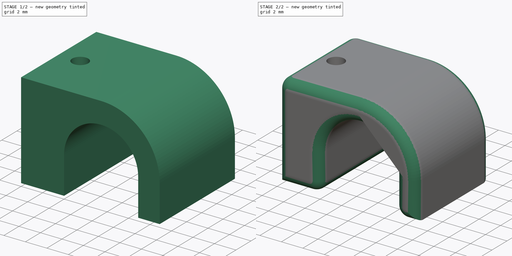
[diagram: build sequence overview — one tinted view per stage of 2, left to right]
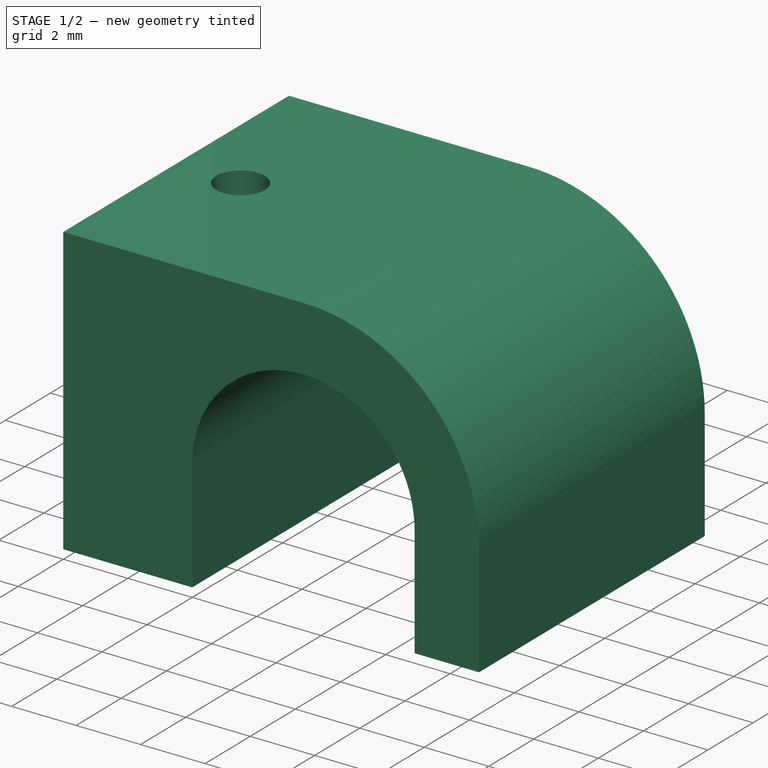
[diagram: stage 1 of 2 — iso view after this stage's code; geometry added in this stage tinted green]
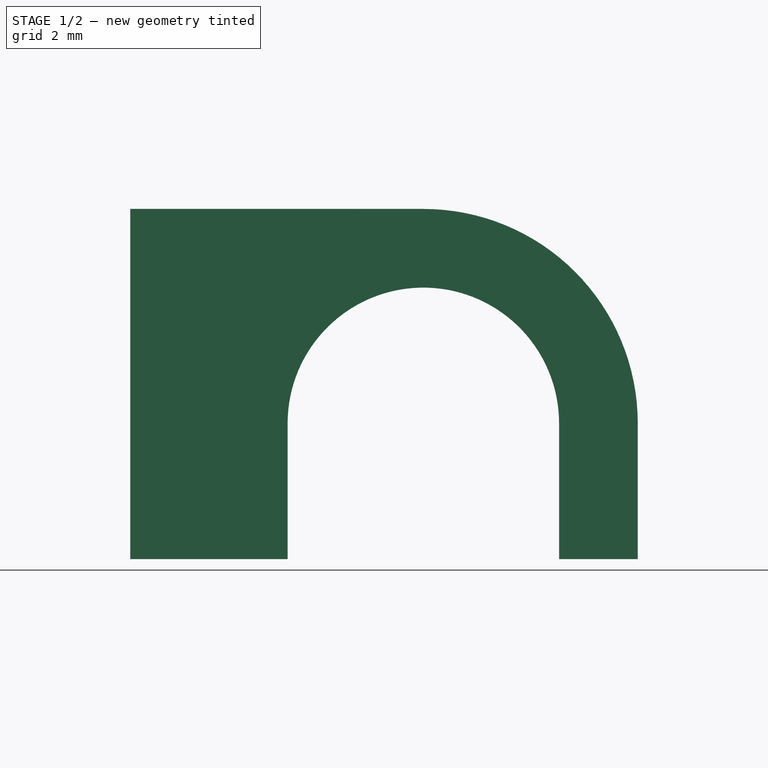
[diagram: stage 1 of 2 — front view after this stage's code; geometry added in this stage tinted green]
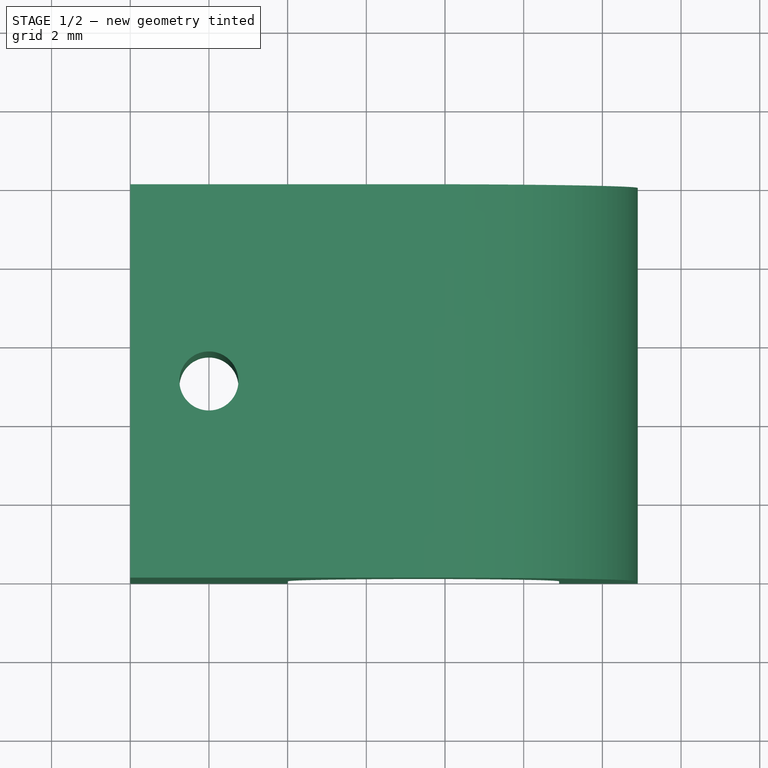
[diagram: stage 1 of 2 — top view after this stage's code; geometry added in this stage tinted green]
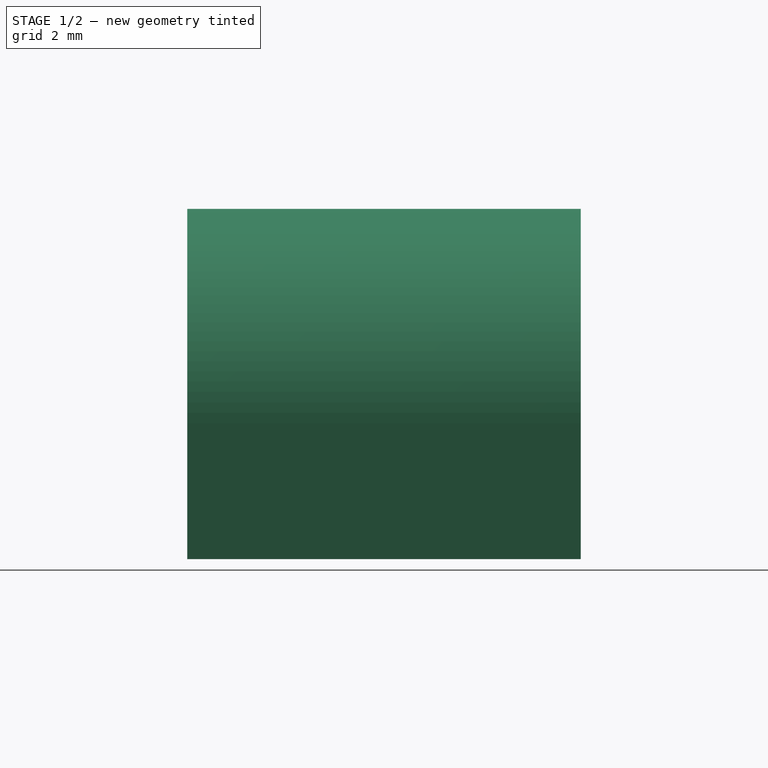
[diagram: stage 1 of 2 — right view after this stage's code; geometry added in this stage tinted green]
FCSTD DOCUMENT  (FreeCAD 1.1R20251125 (Git shallow))
Label: wall_cable_blocker
License: All rights reserved
objects: Sketcher::SketchObject×2, PartDesign::Fillet×2, App::Point×1, App::VarSet×1, PartDesign::Pad×1, PartDesign::Pocket×1, PartDesign::Body×1, App::DocumentObjectGroup×1
note: 17 computed .brp shape members not serialized (recipe doc carries the construction recipe); baked Part::Feature solids carry a one-line shape summary decoded from their .brp

FEATURE [App::Point] Origin001
  Role = Origin
FEATURE [App::VarSet] VarSet  label="CABLE_PARAMETERS"
  CABLE_RADIUS = 3.45
  PADDING = 10
  THICKNESS = 2
FEATURE [Sketcher::SketchObject] Sketch001
  ArcFitTolerance = 1e-06
  AttachmentSupport = -> [Origin]
  ExternalTypes = [0]
  FullyConstrained = true
  MakeInternals = false
  MapMode = 5
  Placement = pos=(0,0,0) rot=(1,0,0;1.5708rad)
  expr: Constraints[12] = <<CABLE_PARAMETERS>>.CABLE_RADIUS + 2 * <<CABLE_PARAMETERS>>.THICKNESS
  expr: Constraints[21] = <<CABLE_PARAMETERS>>.THICKNESS
  expr: Constraints[22] = <<CABLE_PARAMETERS>>.CABLE_RADIUS
  expr: Constraints[26] = <<CABLE_PARAMETERS>>.THICKNESS * 2
  expr: Constraints[4] = <<CABLE_PARAMETERS>>.CABLE_RADIUS
  expr: Constraints[5] = <<CABLE_PARAMETERS>>.CABLE_RADIUS * 2 + 2 * <<CABLE_PARAMETERS>>.THICKNESS
  expr: Constraints[9] = <<CABLE_PARAMETERS>>.CABLE_RADIUS * 2 + <<CABLE_PARAMETERS>>.THICKNESS
  sketch-geometry (10):
    g0: LineSegment StartX=12.9 StartY=-7.4e-15 StartZ=0 EndX=12.9 EndY=3.45 EndZ=0
    g1: LineSegment [constr] StartX=12.9 StartY=3.45 StartZ=0 EndX=2 EndY=3.45 EndZ=0
    g2: ArcOfCircle CenterX=7.45 CenterY=3.45 CenterZ=0 NormalX=0 NormalY=0 NormalZ=1 AngleXU=0 Radius=5.45 StartAngle=4e-16 EndAngle=1.5708
    g3: LineSegment StartX=0 StartY=0 StartZ=0 EndX=0 EndY=8.9 EndZ=0
    g4: LineSegment StartX=0 StartY=8.9 StartZ=0 EndX=7.45 EndY=8.9 EndZ=0
    g5: ArcOfCircle CenterX=7.45 CenterY=3.45 CenterZ=0 NormalX=0 NormalY=0 NormalZ=1 AngleXU=0 Radius=3.45 StartAngle=0 EndAngle=3.14159
    g6: LineSegment StartX=10.9 StartY=3.45 StartZ=0 EndX=10.9 EndY=-7.5e-15 EndZ=0
    g7: LineSegment StartX=4 StartY=3.45 StartZ=0 EndX=4 EndY=0 EndZ=0
    g8: LineSegment StartX=10.9 StartY=-7.4e-15 StartZ=0 EndX=12.9 EndY=-7.4e-15 EndZ=0
    g9: LineSegment StartX=0 StartY=0 StartZ=0 EndX=4 EndY=0 EndZ=0
  constraints (28):
    c: Coincident(g8,g0)
    c: Coincident(g0,g1)
    c: Horizontal(g1)
    c: Vertical(g0)
    c: DistanceY(g0,g0) = 3.45
    c: DistanceX(g1,g1) = 10.9
    c: Coincident(g2,g0)
    c: PointOnObject(g2,g1)
    c: Vertical(g3)
    c: Distance(g3,g3) = 8.9
    c: Coincident(g4,g3)
    c: Tangent(g4,g2) = 1.5708
    c: DistanceX(g4,g4) = 7.45
    c: Coincident(g5,g2)
    c: PointOnObject(g5,g1)
    c: PointOnObject(g5,g1)
    c: Tangent(g5,g6) = 1.5708
    c: Coincident(g7,g5)
    c: Vertical(g7)
    c: Horizontal(g8)
    c: Coincident(g8,g6)
    c: Distance(g8,g8) = 2
    c: Radius(g5) = 3.45
    c: Coincident(g9,g3)
    c: Coincident(g9,g7)
    c: Horizontal(g9)
    c: Distance(g9,g9) = 4
    c: Coincident(g3,g-1)
FEATURE [PartDesign::Pad] Pad
  Direction = (0,-1,2e-16)
  Length = 10
  Length2 = 10
  Profile = -> Sketch001
  ReferenceAxis = -> Sketch001 [N_Axis]
  Refine = true
  SideType = 0
  Suppressed = false
  Type = 0
  Type2 = 0
  expr: Length = <<CABLE_PARAMETERS>>.PADDING
FEATURE [Sketcher::SketchObject] Sketch
  ArcFitTolerance = 1e-06
  AttachmentSupport = -> [Pad]
  ExternalGeometry = -> [Pad]
  ExternalTypes = [0]
  FullyConstrained = true
  MakeInternals = false
  MapMode = 5
  Placement = pos=(-2.1e-15,2e-15,8.9) rot=(0,0,1;0rad)
  expr: Constraints[0] = 1.5
  expr: Constraints[1] = <<CABLE_PARAMETERS>>.PADDING / 2
  expr: Constraints[2] = <<CABLE_PARAMETERS>>.THICKNESS
  sketch-geometry (1):
    g0: Circle CenterX=2 CenterY=-5 CenterZ=0 NormalX=0 NormalY=0 NormalZ=1 AngleXU=0 Radius=0.75
  constraints (3):
    c: Diameter(g0) = 1.5
    c: DistanceY(g0,g-1) = 5
    c: DistanceX(g-1,g0) = 2
FEATURE [PartDesign::Pocket] Pocket
  BaseFeature = -> Pad
  Direction = (0,0,-1)
  Length = 5
  Length2 = 5
  Profile = -> Sketch
  ReferenceAxis = -> Sketch [N_Axis]
  Refine = true
  SideType = 0
  Suppressed = false
  Type = 2
  Type2 = 0
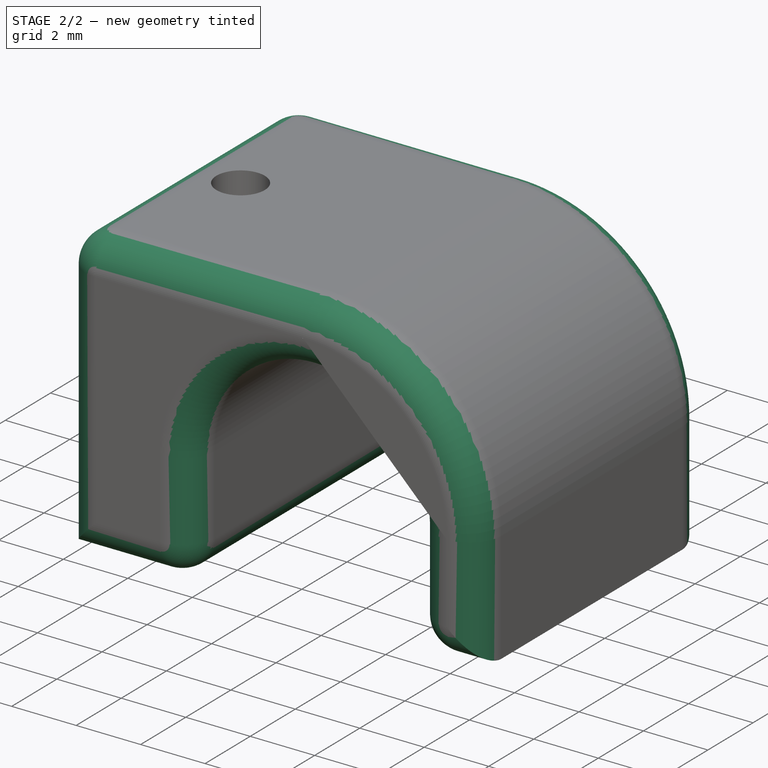
[diagram: stage 2 of 2 — iso view after this stage's code; geometry added in this stage tinted green]
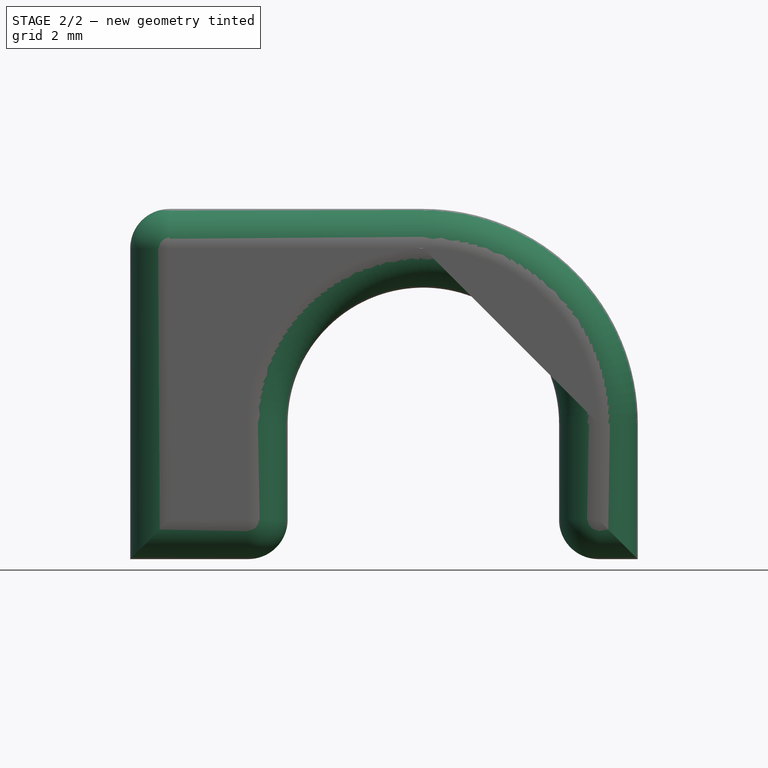
[diagram: stage 2 of 2 — front view after this stage's code; geometry added in this stage tinted green]
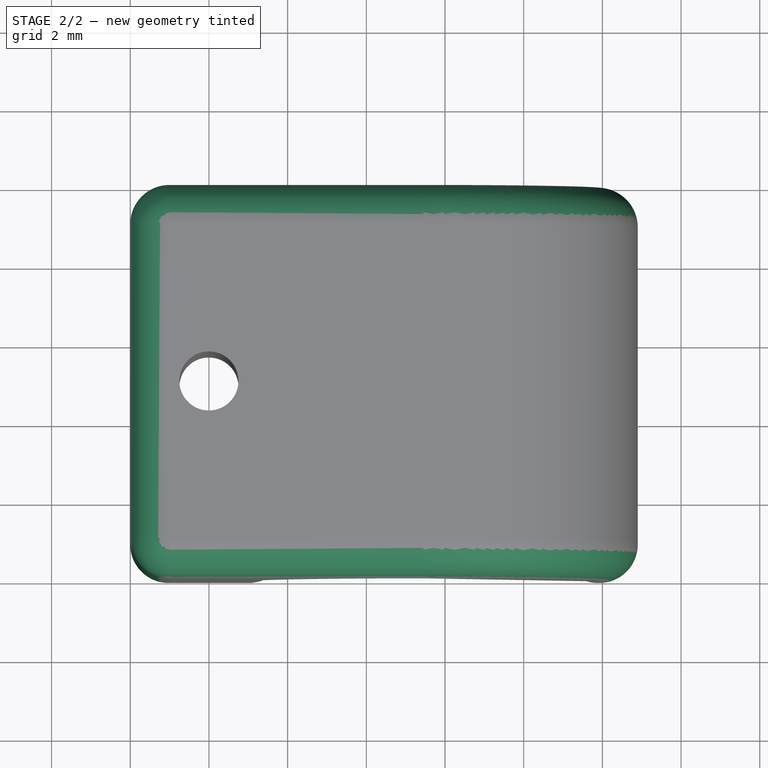
[diagram: stage 2 of 2 — top view after this stage's code; geometry added in this stage tinted green]
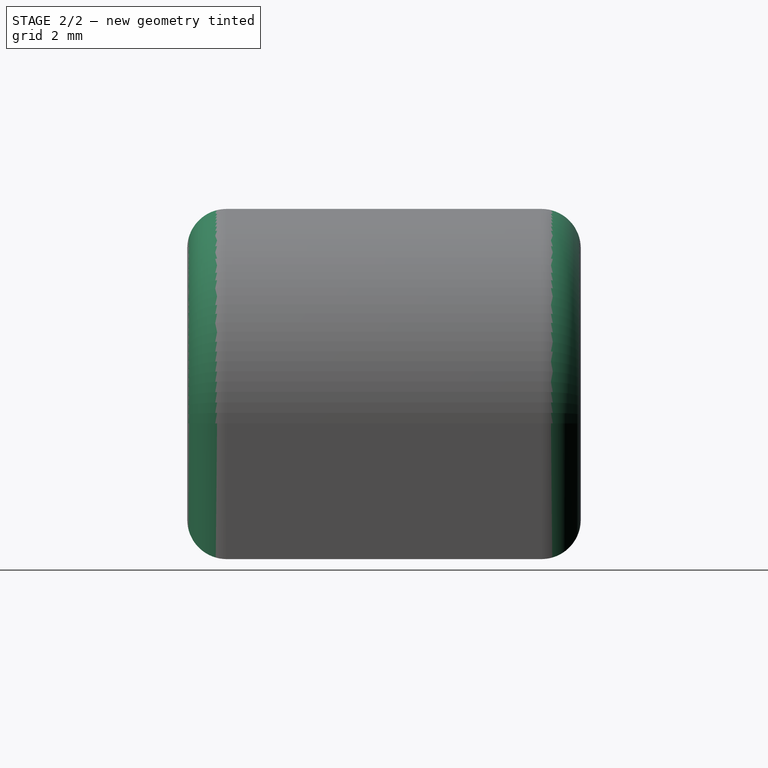
[diagram: stage 2 of 2 — right view after this stage's code; geometry added in this stage tinted green]
FEATURE [PartDesign::Fillet] Fillet
  Base = -> Pocket [Edge26,Edge23,Edge2]
  BaseFeature = -> Pocket
  Radius = 1
  Refine = true
  SupportTransform = false
  Suppressed = false
  UseAllEdges = false
FEATURE [PartDesign::Fillet] Fillet001
  Base = -> Fillet [Edge11,Edge24,Edge6,Edge19]
  BaseFeature = -> Fillet
  Radius = 1
  Refine = true
  SupportTransform = false
  Suppressed = false
  UseAllEdges = false
FEATURE [PartDesign::Body] Body
  AllowCompound = false
  Group = -> [Sketch001,Pad,Sketch,Pocket,Fillet,Fillet001]
  Origin = -> Origin
  Tip = -> Fillet001
FEATURE [App::DocumentObjectGroup] Group  label="wall_caple_blockers"
  Group = -> [Body]
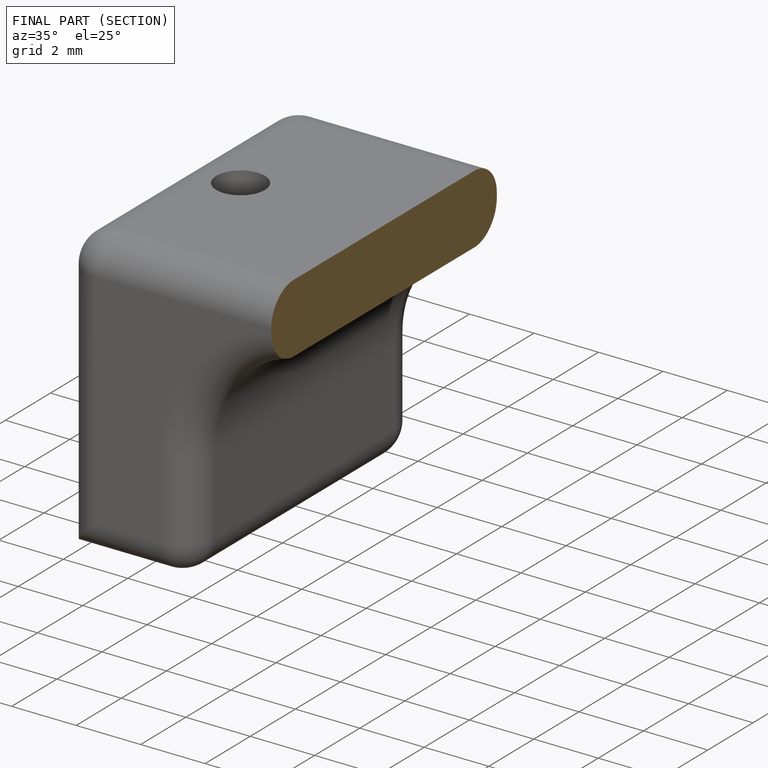
[diagram: finished part — half-section view (interior)]
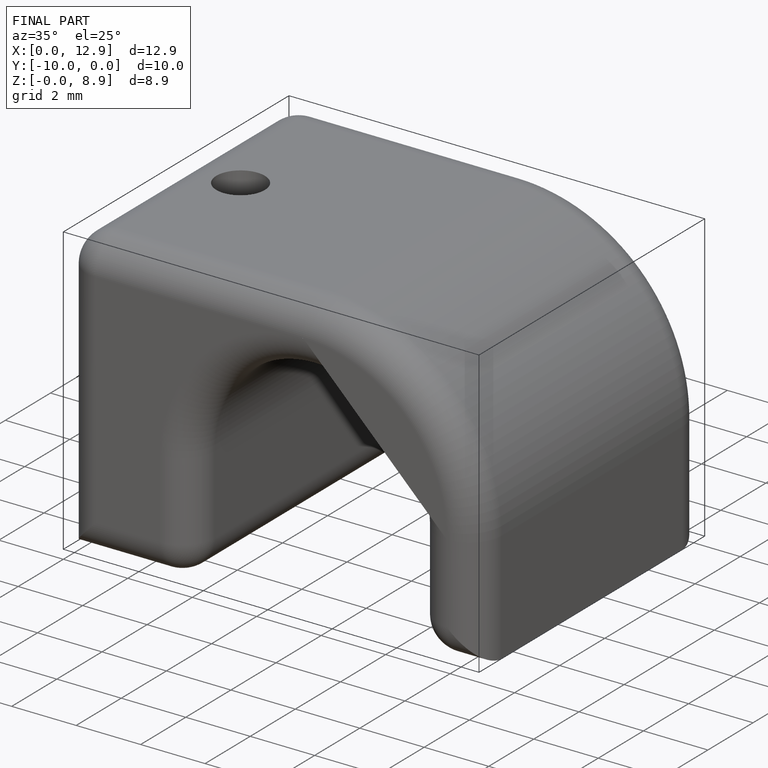
[diagram: finished part — iso view with bounding-box wireframe]
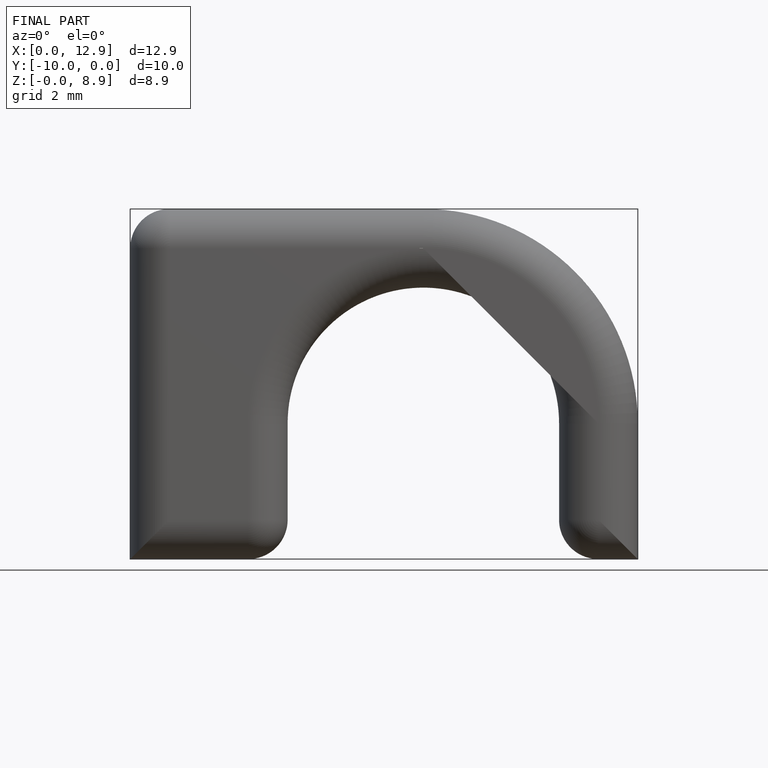
[diagram: finished part — front view with bounding-box wireframe]
